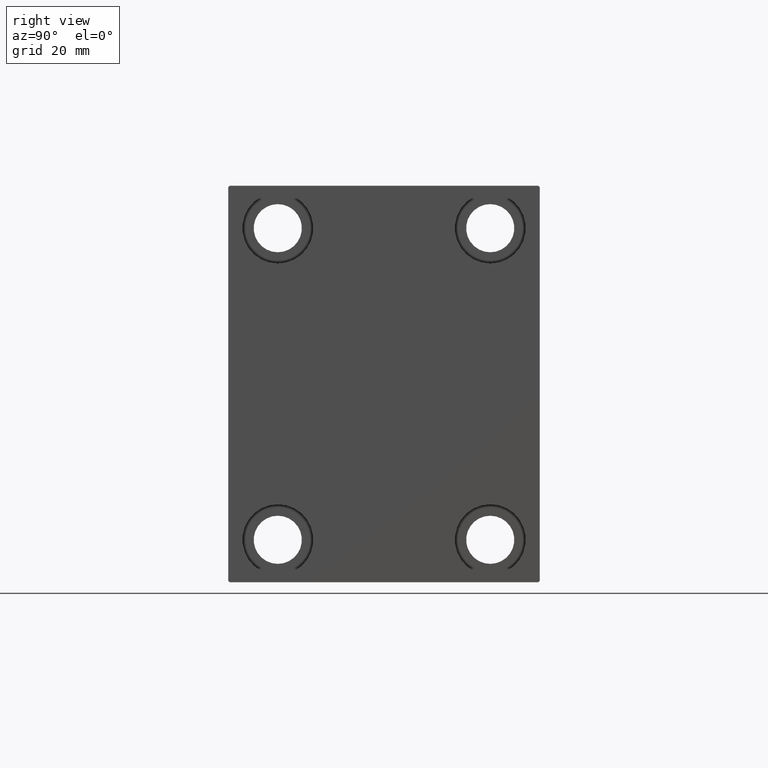
[diagram: clean part render]
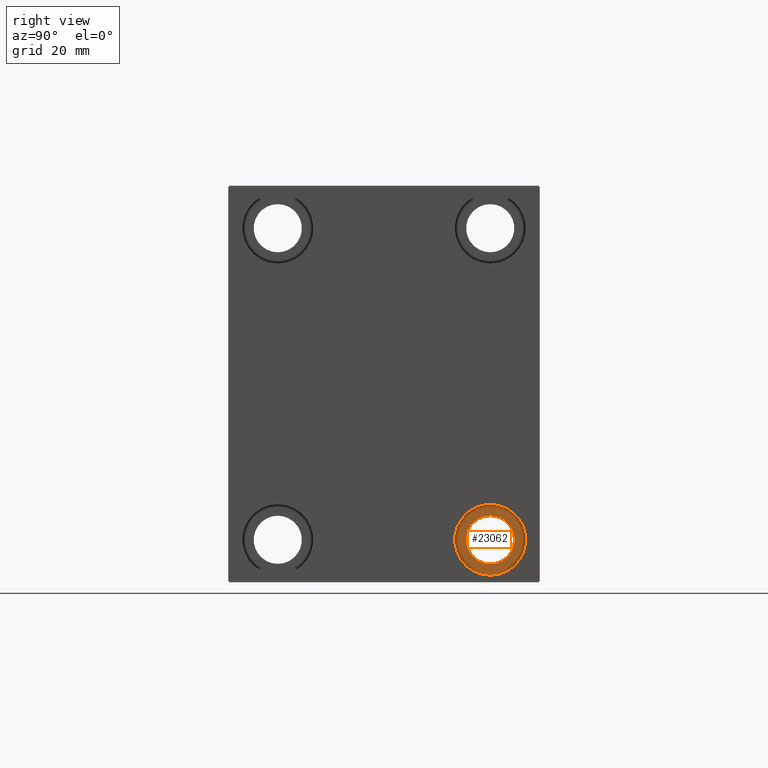
[diagram: same view with one face highlighted and labeled with its STEP entity id]
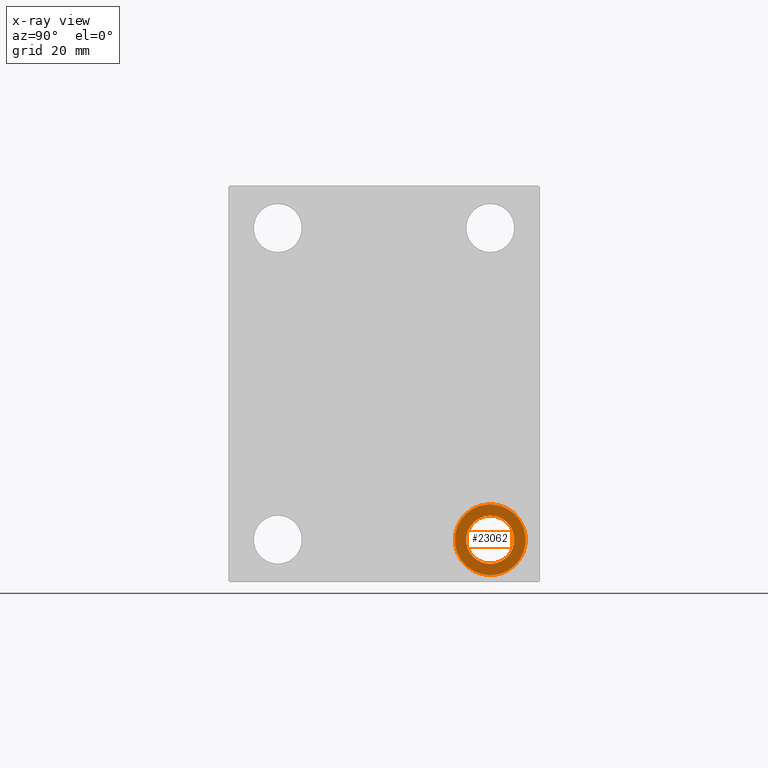
[diagram: x-ray of the same camera — body ghosted, the highlighted face saturated]
A machine part, right view. The second image highlights one B-rep face of the part: STEP entity #23062.
The next image is the same camera in x-ray: the body ghosted, the highlighted face saturated — about 0% of this face is hidden behind the body in this view.
In plain terms, the highlighted planar face has unit normal (1, 0, 0).
Its self-contained STEP definition (entity closure, byte-faithful):
#268 = CARTESIAN_POINT ( 'NONE',  ( 155.9999999999999716, 37.49999999999997868, -54.99999999999999289 ) ) ;
#1829 = DIRECTION ( 'NONE',  ( 0.000000000000000000, 0.000000000000000000, 1.000000000000000000 ) ) ;
#3633 = FACE_OUTER_BOUND ( 'NONE', #6106, .T. ) ;
#3734 = DIRECTION ( 'NONE',  ( 0.000000000000000000, 0.000000000000000000, -1.000000000000000000 ) ) ;
#3859 = FACE_BOUND ( 'NONE', #28251, .T. ) ;
#4461 = CARTESIAN_POINT ( 'NONE',  ( 155.9999999999999716, 37.49999999999997868, -67.49999999999998579 ) ) ;
#4651 = CIRCLE ( 'NONE', #6760, 8.499999999999992895 ) ;
#4801 = CARTESIAN_POINT ( 'NONE',  ( 155.9999999999999716, 37.49999999999997868, -63.49999999999998579 ) ) ;
#5092 = AXIS2_PLACEMENT_3D ( 'NONE', #11525, #17980, #3734 ) ;
#6106 = EDGE_LOOP ( 'NONE', ( #36543, #38646 ) ) ;
#6178 = CARTESIAN_POINT ( 'NONE',  ( 155.9999999999999716, 37.49999999999997868, -54.99999999999999289 ) ) ;
#6760 = AXIS2_PLACEMENT_3D ( 'NONE', #268, #40545, #34540 ) ;
#8344 = EDGE_CURVE ( 'NONE', #14472, #33995, #38965, .T. ) ;
#10579 = AXIS2_PLACEMENT_3D ( 'NONE', #6178, #12445, #12883 ) ;
#10767 = DIRECTION ( 'NONE',  ( 1.000000000000000000, 0.000000000000000000, -0.000000000000000000 ) ) ;
#11525 = CARTESIAN_POINT ( 'NONE',  ( 155.9999999999999716, 37.49999999999997868, -54.99999999999999289 ) ) ;
#12445 = DIRECTION ( 'NONE',  ( -1.000000000000000000, -0.000000000000000000, -0.000000000000000000 ) ) ;
#12883 = DIRECTION ( 'NONE',  ( 0.000000000000000000, 0.000000000000000000, 1.000000000000000000 ) ) ;
#14472 = VERTEX_POINT ( 'NONE', #4461 ) ;
#15064 = CIRCLE ( 'NONE', #5092, 8.499999999999992895 ) ;
#17980 = DIRECTION ( 'NONE',  ( -1.000000000000000000, -0.000000000000000000, -0.000000000000000000 ) ) ;
#18775 = CARTESIAN_POINT ( 'NONE',  ( 155.9999999999999716, 37.49999999999997868, -54.99999999999999289 ) ) ;
#19588 = CARTESIAN_POINT ( 'NONE',  ( 155.9999999999999716, 37.49999999999997868, -46.50000000000000000 ) ) ;
#21662 = EDGE_CURVE ( 'NONE', #40067, #32297, #15064, .T. ) ;
#23016 = CIRCLE ( 'NONE', #38641, 12.49999999999999645 ) ;
#23062 = ADVANCED_FACE ( 'NONE', ( #3633, #3859 ), #41233, .T. ) ;
#24963 = ORIENTED_EDGE ( 'NONE', *, *, #34264, .T. ) ;
#28251 = EDGE_LOOP ( 'NONE', ( #24963, #32475 ) ) ;
#29271 = AXIS2_PLACEMENT_3D ( 'NONE', #41009, #10767, #41885 ) ;
#29493 = EDGE_CURVE ( 'NONE', #33995, #14472, #23016, .T. ) ;
#32297 = VERTEX_POINT ( 'NONE', #19588 ) ;
#32336 = DIRECTION ( 'NONE',  ( -1.000000000000000000, -0.000000000000000000, -0.000000000000000000 ) ) ;
#32475 = ORIENTED_EDGE ( 'NONE', *, *, #21662, .T. ) ;
#33995 = VERTEX_POINT ( 'NONE', #39031 ) ;
#34264 = EDGE_CURVE ( 'NONE', #32297, #40067, #4651, .T. ) ;
#34540 = DIRECTION ( 'NONE',  ( 0.000000000000000000, 0.000000000000000000, -1.000000000000000000 ) ) ;
#36543 = ORIENTED_EDGE ( 'NONE', *, *, #8344, .F. ) ;
#38641 = AXIS2_PLACEMENT_3D ( 'NONE', #18775, #32336, #1829 ) ;
#38646 = ORIENTED_EDGE ( 'NONE', *, *, #29493, .F. ) ;
#38965 = CIRCLE ( 'NONE', #10579, 12.49999999999999645 ) ;
#39031 = CARTESIAN_POINT ( 'NONE',  ( 155.9999999999999716, 37.49999999999997868, -42.49999999999999289 ) ) ;
#40067 = VERTEX_POINT ( 'NONE', #4801 ) ;
#40545 = DIRECTION ( 'NONE',  ( -1.000000000000000000, -0.000000000000000000, -0.000000000000000000 ) ) ;
#41009 = CARTESIAN_POINT ( 'NONE',  ( 155.9999999999999716, 37.49999999999997868, -54.99999999999999289 ) ) ;
#41233 = PLANE ( 'NONE',  #29271 ) ;
#41885 = DIRECTION ( 'NONE',  ( 0.000000000000000000, 0.000000000000000000, 1.000000000000000000 ) ) ;